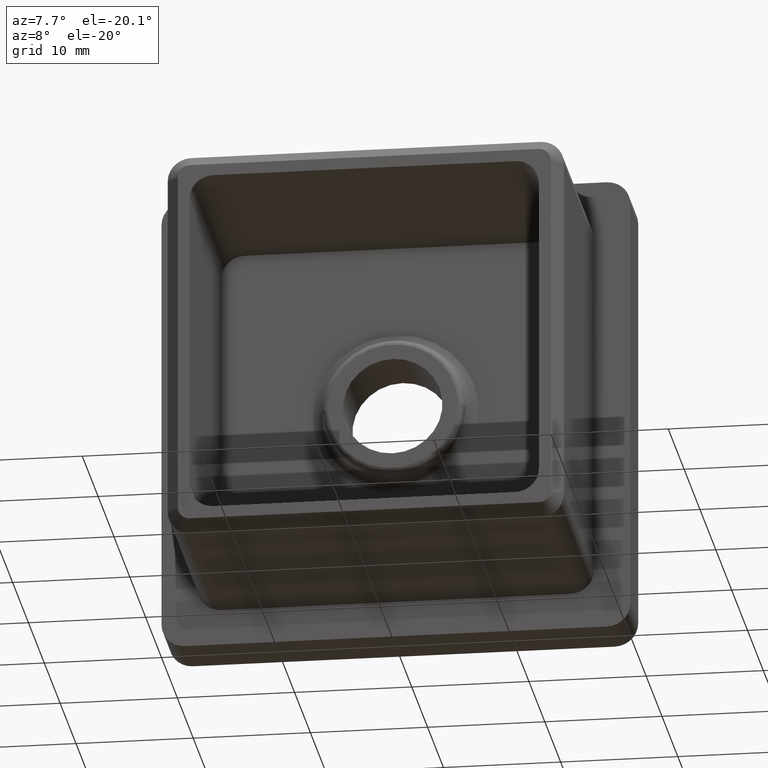
[diagram: clean part render]
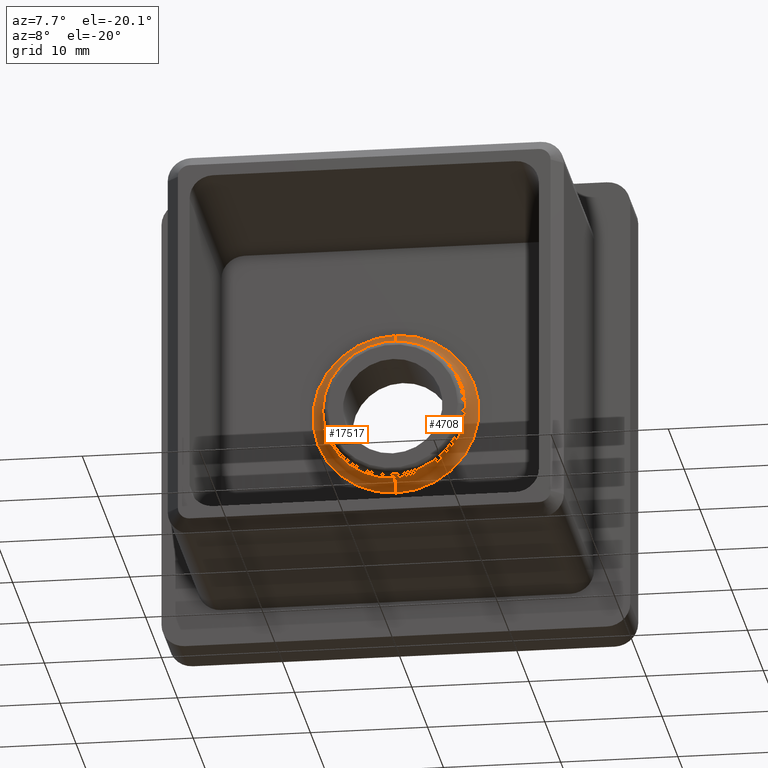
[diagram: same view with one multi-face feature highlighted, each face labeled with its STEP entity id]
A machine part, auxiliary view. The highlighted faces form ONE feature: a constant-radius fillet chain: 2 tangent blend faces with common blend radius 1 mm. The faces share edges in the B-rep.
Their STEP definitions:
[1] entity #4708 (Torus):
#200 = AXIS2_PLACEMENT_3D ( 'NONE', #12715, #220, #13987 ) ;
#220 = DIRECTION ( 'NONE',  ( -1.000000000000000000, 0.0000000000000000000, 0.0000000000000000000 ) ) ;
#551 = CIRCLE ( 'NONE', #200, 1.000000000000000000 ) ;
#2270 = DIRECTION ( 'NONE',  ( 1.224646799147353500E-016, -1.000000000000000000, 0.0000000000000000000 ) ) ;
#2564 = CARTESIAN_POINT ( 'NONE',  ( 2.556028599677929100E-016, -1.000000000000000000, 2.091163823181700000E-016 ) ) ;
#2775 = CARTESIAN_POINT ( 'NONE',  ( 2.556028599677929100E-016, -0.9128442572523489700, 2.091163823181700000E-016 ) ) ;
#2965 = ORIENTED_EDGE ( 'NONE', *, *, #12490, .F. ) ;
#3005 = AXIS2_PLACEMENT_3D ( 'NONE', #2564, #16394, #17796 ) ;
#3664 = CARTESIAN_POINT ( 'NONE',  ( 2.556028599677929600E-016, -0.9128442572523489700, 6.095113802977516000 ) ) ;
#4408 = CARTESIAN_POINT ( 'NONE',  ( 1.063038353310600600E-015, -0.9128442572523489700, -6.095113802977516000 ) ) ;
#4708 = ADVANCED_FACE ( 'NONE', ( #15508 ), #6461, .F. ) ;
#4829 = EDGE_CURVE ( 'NONE', #6511, #10215, #551, .T. ) ;
#4955 = DIRECTION ( 'NONE',  ( -1.000000000000000000, -1.245163823469716900E-016, 0.0000000000000000000 ) ) ;
#5080 = VERTEX_POINT ( 'NONE', #4408 ) ;
#5128 = CIRCLE ( 'NONE', #7688, 6.095113802977516000 ) ;
#6008 = EDGE_CURVE ( 'NONE', #9843, #10215, #10309, .T. ) ;
#6461 = TOROIDAL_SURFACE ( 'NONE', #3005, 7.091308501069264000, 1.000000000000000000 ) ;
#6511 = VERTEX_POINT ( 'NONE', #7411 ) ;
#6631 = DIRECTION ( 'NONE',  ( 0.0000000000000000000, 0.0000000000000000000, 1.000000000000000000 ) ) ;
#6976 = CIRCLE ( 'NONE', #7953, 7.091308501069264000 ) ;
#7134 = DIRECTION ( 'NONE',  ( -1.000000000000000000, -1.245163823469716900E-016, 0.0000000000000000000 ) ) ;
#7411 = CARTESIAN_POINT ( 'NONE',  ( 2.556028599677929100E-016, 0.0000000000000000000, 7.091308501069264000 ) ) ;
#7577 = ORIENTED_EDGE ( 'NONE', *, *, #13501, .F. ) ;
#7652 = VERTEX_POINT ( 'NONE', #10291 ) ;
#7688 = AXIS2_PLACEMENT_3D ( 'NONE', #2775, #13967, #7134 ) ;
#7953 = AXIS2_PLACEMENT_3D ( 'NONE', #16340, #14911, #6631 ) ;
#8535 = EDGE_CURVE ( 'NONE', #5080, #9843, #5128, .T. ) ;
#8941 = CARTESIAN_POINT ( 'NONE',  ( 6.095113802977516900, -0.9128442572523483000, 7.464361609255268700E-016 ) ) ;
#9843 = VERTEX_POINT ( 'NONE', #8941 ) ;
#10215 = VERTEX_POINT ( 'NONE', #3664 ) ;
#10291 = CARTESIAN_POINT ( 'NONE',  ( 1.124037685727881600E-015, 0.0000000000000000000, -7.091308501069264000 ) ) ;
#10309 = CIRCLE ( 'NONE', #14932, 6.095113802977516000 ) ;
#10412 = DIRECTION ( 'NONE',  ( 1.000000000000000000, -0.0000000000000000000, 1.224646799147353200E-016 ) ) ;
#11802 = EDGE_LOOP ( 'NONE', ( #7577, #2965, #16598, #11976, #17060 ) ) ;
#11926 = CIRCLE ( 'NONE', #13851, 1.000000000000000000 ) ;
#11976 = ORIENTED_EDGE ( 'NONE', *, *, #6008, .F. ) ;
#12490 = EDGE_CURVE ( 'NONE', #6511, #7652, #6976, .T. ) ;
#12715 = CARTESIAN_POINT ( 'NONE',  ( 2.556028599677929100E-016, -1.000000000000000000, 7.091308501069264000 ) ) ;
#13501 = EDGE_CURVE ( 'NONE', #7652, #5080, #11926, .T. ) ;
#13851 = AXIS2_PLACEMENT_3D ( 'NONE', #17170, #10412, #15696 ) ;
#13967 = DIRECTION ( 'NONE',  ( 1.224646799147353500E-016, -1.000000000000000000, 0.0000000000000000000 ) ) ;
#13987 = DIRECTION ( 'NONE',  ( 0.0000000000000000000, 0.0000000000000000000, 1.000000000000000000 ) ) ;
#14911 = DIRECTION ( 'NONE',  ( 0.0000000000000000000, 1.000000000000000000, 0.0000000000000000000 ) ) ;
#14932 = AXIS2_PLACEMENT_3D ( 'NONE', #16096, #2270, #4955 ) ;
#15508 = FACE_OUTER_BOUND ( 'NONE', #11802, .T. ) ;
#15696 = DIRECTION ( 'NONE',  ( 1.224646799147352500E-016, 0.0000000000000000000, -1.000000000000000000 ) ) ;
#16096 = CARTESIAN_POINT ( 'NONE',  ( 2.556028599677929100E-016, -0.9128442572523489700, 2.091163823181700000E-016 ) ) ;
#16340 = CARTESIAN_POINT ( 'NONE',  ( 2.556028599677929100E-016, 0.0000000000000000000, 2.091163823181700000E-016 ) ) ;
#16394 = DIRECTION ( 'NONE',  ( 0.0000000000000000000, 1.000000000000000000, 0.0000000000000000000 ) ) ;
#16598 = ORIENTED_EDGE ( 'NONE', *, *, #4829, .T. ) ;
#17060 = ORIENTED_EDGE ( 'NONE', *, *, #8535, .F. ) ;
#17170 = CARTESIAN_POINT ( 'NONE',  ( 1.124037685727881600E-015, -1.000000000000000000, -7.091308501069264000 ) ) ;
#17796 = DIRECTION ( 'NONE',  ( 0.0000000000000000000, 0.0000000000000000000, 1.000000000000000000 ) ) ;
[2] entity #17517 (Torus):
#200 = AXIS2_PLACEMENT_3D ( 'NONE', #12715, #220, #13987 ) ;
#220 = DIRECTION ( 'NONE',  ( -1.000000000000000000, 0.0000000000000000000, 0.0000000000000000000 ) ) ;
#542 = DIRECTION ( 'NONE',  ( 1.224646799147353500E-016, -1.000000000000000000, 0.0000000000000000000 ) ) ;
#551 = CIRCLE ( 'NONE', #200, 1.000000000000000000 ) ;
#587 = TOROIDAL_SURFACE ( 'NONE', #5474, 7.091308501069264000, 1.000000000000000000 ) ;
#1097 = DIRECTION ( 'NONE',  ( 0.0000000000000000000, 0.0000000000000000000, 1.000000000000000000 ) ) ;
#2884 = CARTESIAN_POINT ( 'NONE',  ( -6.095113802977517800, -0.9128442572523496300, 0.0000000000000000000 ) ) ;
#3664 = CARTESIAN_POINT ( 'NONE',  ( 2.556028599677929600E-016, -0.9128442572523489700, 6.095113802977516000 ) ) ;
#3702 = DIRECTION ( 'NONE',  ( 0.0000000000000000000, 1.000000000000000000, 0.0000000000000000000 ) ) ;
#3928 = ORIENTED_EDGE ( 'NONE', *, *, #7472, .F. ) ;
#4077 = CARTESIAN_POINT ( 'NONE',  ( 2.556028599677929100E-016, 0.0000000000000000000, 2.091163823181700000E-016 ) ) ;
#4397 = EDGE_CURVE ( 'NONE', #7264, #5080, #14865, .T. ) ;
#4408 = CARTESIAN_POINT ( 'NONE',  ( 1.063038353310600600E-015, -0.9128442572523489700, -6.095113802977516000 ) ) ;
#4829 = EDGE_CURVE ( 'NONE', #6511, #10215, #551, .T. ) ;
#5078 = ORIENTED_EDGE ( 'NONE', *, *, #4397, .F. ) ;
#5080 = VERTEX_POINT ( 'NONE', #4408 ) ;
#5474 = AXIS2_PLACEMENT_3D ( 'NONE', #14665, #3702, #17547 ) ;
#6511 = VERTEX_POINT ( 'NONE', #7411 ) ;
#7264 = VERTEX_POINT ( 'NONE', #2884 ) ;
#7411 = CARTESIAN_POINT ( 'NONE',  ( 2.556028599677929100E-016, 0.0000000000000000000, 7.091308501069264000 ) ) ;
#7472 = EDGE_CURVE ( 'NONE', #10215, #7264, #16425, .T. ) ;
#7539 = CARTESIAN_POINT ( 'NONE',  ( 2.556028599677929100E-016, -0.9128442572523489700, 2.091163823181700000E-016 ) ) ;
#7652 = VERTEX_POINT ( 'NONE', #10291 ) ;
#8961 = ORIENTED_EDGE ( 'NONE', *, *, #4829, .F. ) ;
#9015 = AXIS2_PLACEMENT_3D ( 'NONE', #4077, #16337, #1097 ) ;
#9239 = DIRECTION ( 'NONE',  ( -1.000000000000000000, -1.245163823469716900E-016, 0.0000000000000000000 ) ) ;
#9518 = CIRCLE ( 'NONE', #9015, 7.091308501069264000 ) ;
#10215 = VERTEX_POINT ( 'NONE', #3664 ) ;
#10291 = CARTESIAN_POINT ( 'NONE',  ( 1.124037685727881600E-015, 0.0000000000000000000, -7.091308501069264000 ) ) ;
#10412 = DIRECTION ( 'NONE',  ( 1.000000000000000000, -0.0000000000000000000, 1.224646799147353200E-016 ) ) ;
#10585 = ORIENTED_EDGE ( 'NONE', *, *, #16275, .F. ) ;
#11355 = AXIS2_PLACEMENT_3D ( 'NONE', #7539, #542, #17369 ) ;
#11926 = CIRCLE ( 'NONE', #13851, 1.000000000000000000 ) ;
#12662 = AXIS2_PLACEMENT_3D ( 'NONE', #14366, #14680, #9239 ) ;
#12715 = CARTESIAN_POINT ( 'NONE',  ( 2.556028599677929100E-016, -1.000000000000000000, 7.091308501069264000 ) ) ;
#13501 = EDGE_CURVE ( 'NONE', #7652, #5080, #11926, .T. ) ;
#13851 = AXIS2_PLACEMENT_3D ( 'NONE', #17170, #10412, #15696 ) ;
#13987 = DIRECTION ( 'NONE',  ( 0.0000000000000000000, 0.0000000000000000000, 1.000000000000000000 ) ) ;
#14019 = FACE_OUTER_BOUND ( 'NONE', #15047, .T. ) ;
#14366 = CARTESIAN_POINT ( 'NONE',  ( 2.556028599677929100E-016, -0.9128442572523489700, 2.091163823181700000E-016 ) ) ;
#14665 = CARTESIAN_POINT ( 'NONE',  ( 2.556028599677929100E-016, -1.000000000000000000, 2.091163823181700000E-016 ) ) ;
#14680 = DIRECTION ( 'NONE',  ( 1.224646799147353500E-016, -1.000000000000000000, 0.0000000000000000000 ) ) ;
#14865 = CIRCLE ( 'NONE', #11355, 6.095113802977516000 ) ;
#15047 = EDGE_LOOP ( 'NONE', ( #10585, #17611, #5078, #3928, #8961 ) ) ;
#15696 = DIRECTION ( 'NONE',  ( 1.224646799147352500E-016, 0.0000000000000000000, -1.000000000000000000 ) ) ;
#16275 = EDGE_CURVE ( 'NONE', #7652, #6511, #9518, .T. ) ;
#16337 = DIRECTION ( 'NONE',  ( 0.0000000000000000000, 1.000000000000000000, 0.0000000000000000000 ) ) ;
#16425 = CIRCLE ( 'NONE', #12662, 6.095113802977516000 ) ;
#17170 = CARTESIAN_POINT ( 'NONE',  ( 1.124037685727881600E-015, -1.000000000000000000, -7.091308501069264000 ) ) ;
#17369 = DIRECTION ( 'NONE',  ( -1.000000000000000000, -1.245163823469716900E-016, 0.0000000000000000000 ) ) ;
#17517 = ADVANCED_FACE ( 'NONE', ( #14019 ), #587, .F. ) ;
#17547 = DIRECTION ( 'NONE',  ( 0.0000000000000000000, 0.0000000000000000000, 1.000000000000000000 ) ) ;
#17611 = ORIENTED_EDGE ( 'NONE', *, *, #13501, .T. ) ;